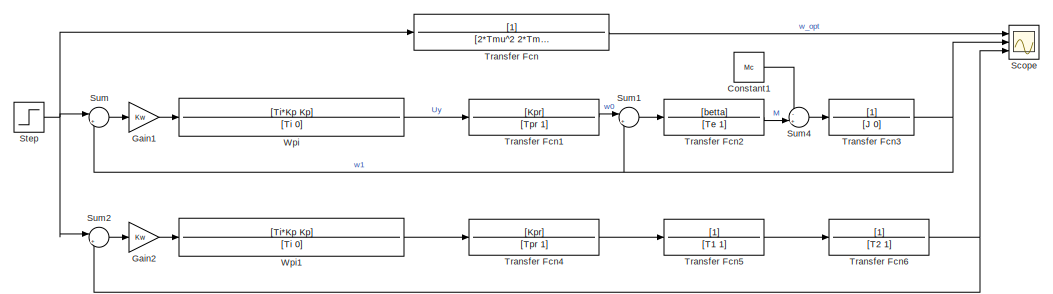
[diagram: root canvas - part 1/2, left side, full height]
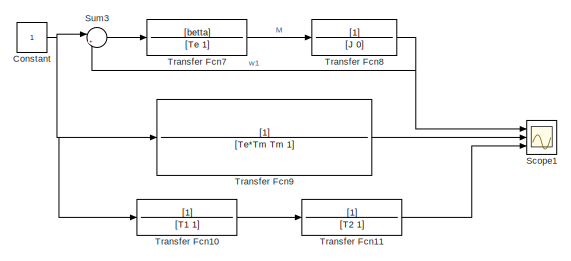
[diagram: root canvas - part 2/2, right side, full height]
MODEL slx_78656c7219b2
KIND model
CONFIG AbsTol = auto
CONFIG EnableMultiTasking = off
CONFIG FixedStep = auto
CONFIG MaxStep = 0.0001
CONFIG MinStep = auto
CONFIG RelTol = 1e-3
CONFIG SampleTimeConstraint = Unconstrained
CONFIG SolverName = VariableStepAuto
CONFIG StartTime = 0.0
CONFIG StopTime = 0.12
BLOCK [Constant] Constant
BLOCK [Constant] Constant1
  Value = Mc
BLOCK [Gain] Gain1
  Gain = Kw
BLOCK [Gain] Gain2
  Gain = Kw
BLOCK [Scope] Scope
  Floating = off
  NumInputPorts = 3
  Ports = [3]
  ScopeSpecificationString = Simulink.scopes.TimeScopeBlockCfg('CurrentConfiguration', extmgr.ConfigurationSet(extmgr.Configuration('Core','General UI',true),extmgr.Configuration('Core','Source UI',true),extmgr.Configuration('Sources','WiredSimulink',true,'DataLoggingVariableName','ScopeData1'),extmgr.Configuration('Visuals','Time Domain',true,'SerializedDisplays',{struct('MinYLimReal','-15.20832','MaxYLimReal','136.87486','Y...<+1520ch>
BLOCK [Scope] Scope1
  Floating = off
  NumInputPorts = 3
  Ports = [3]
  ScopeSpecificationString = Simulink.scopes.TimeScopeBlockCfg('CurrentConfiguration', extmgr.ConfigurationSet(extmgr.Configuration('Core','General UI',true),extmgr.Configuration('Core','Source UI',true),extmgr.Configuration('Sources','WiredSimulink',true,'DataLoggingVariableName','ScopeData1'),extmgr.Configuration('Visuals','Time Domain',true,'SerializedDisplays',{struct('MinYLimReal','-0.125','MaxYLimReal','1.125','YLabelRe...<+1461ch>
BLOCK [Step] Step
  After = w_zad
  SampleTime = 0
  Time = 0
BLOCK [Sum] Sum
  Inputs = |+-
  Ports = [2, 1]
BLOCK [Sum] Sum1
  Inputs = |+-
  Ports = [2, 1]
BLOCK [Sum] Sum2
  Inputs = |+-
  Ports = [2, 1]
BLOCK [Sum] Sum3
  Inputs = |+-
  Ports = [2, 1]
BLOCK [Sum] Sum4
  Inputs = -+|
  Ports = [2, 1]
BLOCK [TransferFcn] Transfer Fcn
  Denominator = [2*Tmu^2 2*Tmu 1]
BLOCK [TransferFcn] Transfer Fcn1
  Denominator = [Tpr 1]
  Numerator = [Kpr]
BLOCK [TransferFcn] Transfer Fcn10
  Denominator = [T1 1]
BLOCK [TransferFcn] Transfer Fcn11
  Denominator = [T2 1]
BLOCK [TransferFcn] Transfer Fcn2
  Denominator = [Te 1]
  Numerator = [betta]
BLOCK [TransferFcn] Transfer Fcn3
  Denominator = [J 0]
BLOCK [TransferFcn] Transfer Fcn4
  Denominator = [Tpr 1]
  Numerator = [Kpr]
BLOCK [TransferFcn] Transfer Fcn5
  Denominator = [T1 1]
BLOCK [TransferFcn] Transfer Fcn6
  Denominator = [T2 1]
BLOCK [TransferFcn] Transfer Fcn7
  Denominator = [Te 1]
  Numerator = [betta]
BLOCK [TransferFcn] Transfer Fcn8
  Denominator = [J 0]
BLOCK [TransferFcn] Transfer Fcn9
  Denominator = [Te*Tm Tm 1]
BLOCK [TransferFcn] Wpi
  Denominator = [Ti 0]
  Numerator = [Ti*Kp Kp]
BLOCK [TransferFcn] Wpi1
  Denominator = [Ti 0]
  Numerator = [Ti*Kp Kp]
LINE Constant1:1 -> Sum4:1
NET Constant:1 -> Sum3:1, Transfer Fcn10:1, Transfer Fcn9:1
LINE Gain1:1 -> Wpi:1
LINE Gain2:1 -> Wpi1:1
NET Step:1 -> Sum2:1, Sum:1, Transfer Fcn:1
LINE Sum1:1 -> Transfer Fcn2:1
LINE Sum2:1 -> Gain2:1
LINE Sum3:1 -> Transfer Fcn7:1
LINE Sum4:1 -> Transfer Fcn3:1
LINE Sum:1 -> Gain1:1
LINE Transfer Fcn10:1 -> Transfer Fcn11:1
LINE Transfer Fcn11:1 -> Scope1:3
LINE Transfer Fcn1:1 -> Sum1:1
LINE Transfer Fcn2:1 -> Sum4:2
NET Transfer Fcn3:1 -> Scope:2, Sum1:2, Sum:2
LINE Transfer Fcn4:1 -> Transfer Fcn5:1
LINE Transfer Fcn5:1 -> Transfer Fcn6:1
NET Transfer Fcn6:1 -> Scope:3, Sum2:2
LINE Transfer Fcn7:1 -> Transfer Fcn8:1
NET Transfer Fcn8:1 -> Scope1:1, Sum3:2
LINE Transfer Fcn9:1 -> Scope1:2
LINE Transfer Fcn:1 -> Scope:1
LINE Wpi1:1 -> Transfer Fcn4:1
LINE Wpi:1 -> Transfer Fcn1:1
note: NET lines group one-source signal fan-out (src -> all destinations, sorted); 1:1 wires keep LINE
